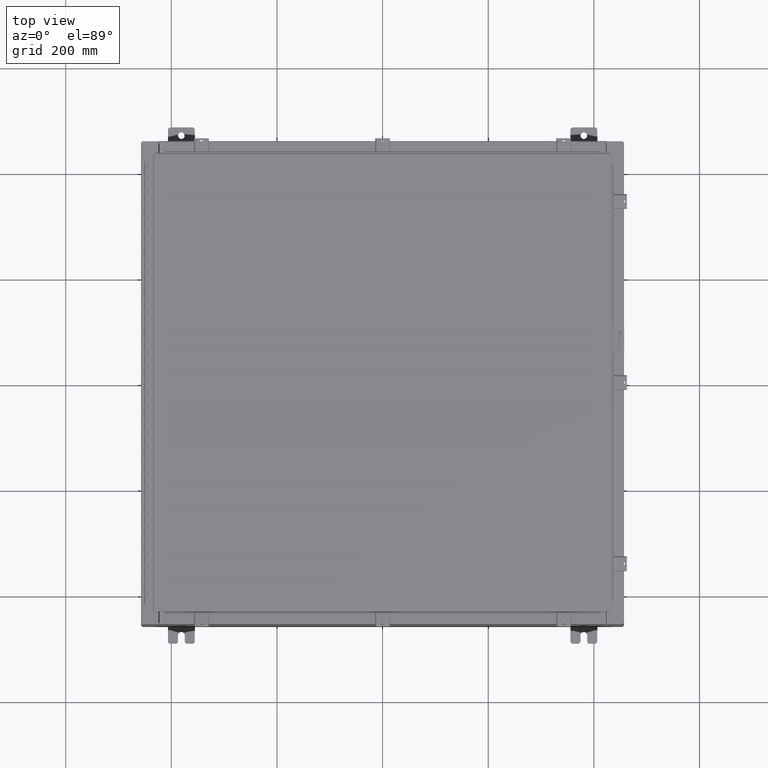
[diagram: clean part render]
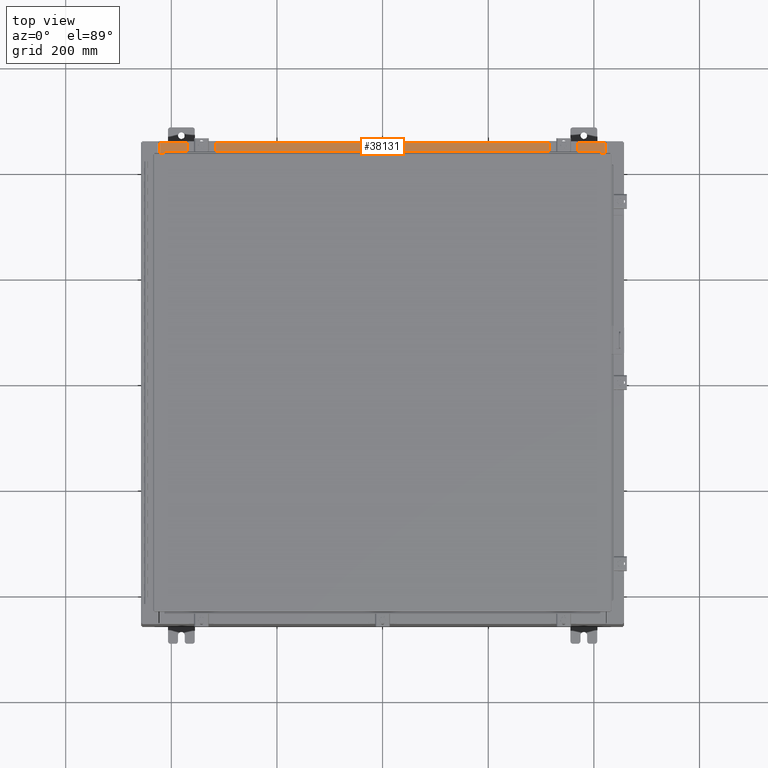
[diagram: same view with one face highlighted and labeled with its STEP entity id]
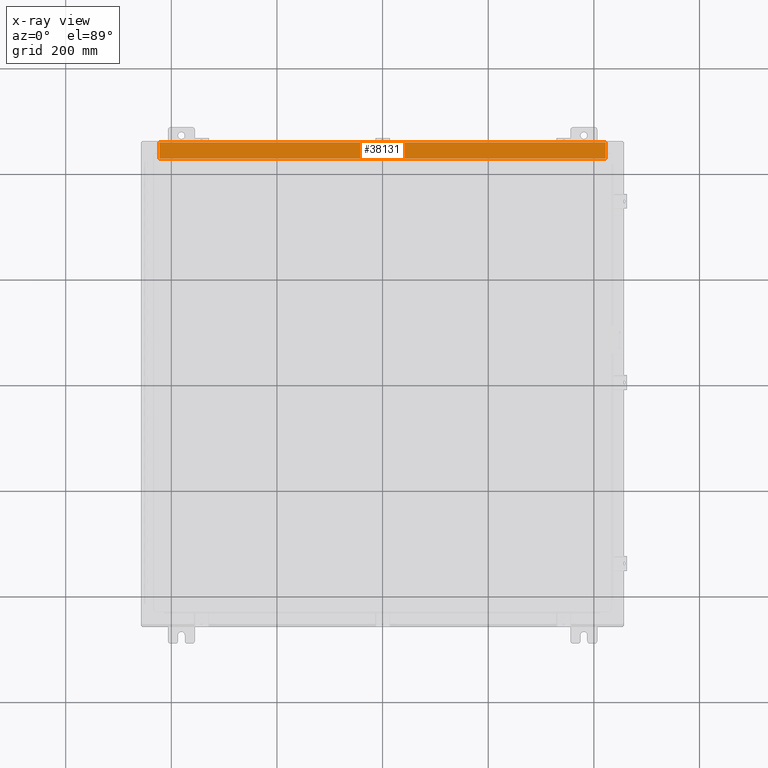
[diagram: x-ray of the same camera — body ghosted, the highlighted face saturated]
A machine part, top view. The second image highlights one B-rep face of the part: STEP entity #38131.
The next image is the same camera in x-ray: the body ghosted, the highlighted face saturated — about 0% of this face is hidden behind the body in this view.
In plain terms, the highlighted planar face has unit normal (0, 0, 1).
Its self-contained STEP definition (entity closure, byte-faithful):
#378 = DIRECTION ( 'NONE',  ( -0.0000000000000000000, 1.000000000000000000, -2.674785894579892700E-015 ) ) ;
#437 = EDGE_CURVE ( 'NONE', #36467, #18773, #7155, .T. ) ;
#1953 = EDGE_CURVE ( 'NONE', #36205, #36467, #21186, .T. ) ;
#3631 = VECTOR ( 'NONE', #378, 39.37007874015748100 ) ;
#4740 = CARTESIAN_POINT ( 'NONE',  ( -16.63719999999999600, -0.08769999999999972300, 5.999999999999999100 ) ) ;
#5788 = CARTESIAN_POINT ( 'NONE',  ( -5.156971724347648400E-018, -0.08769999999999972300, 5.999999999999999100 ) ) ;
#7155 = LINE ( 'NONE', #10080, #42997 ) ;
#8075 = EDGE_LOOP ( 'NONE', ( #8499, #38628, #22397, #26336 ) ) ;
#8376 = LINE ( 'NONE', #5788, #25764 ) ;
#8499 = ORIENTED_EDGE ( 'NONE', *, *, #22002, .F. ) ;
#9284 = DIRECTION ( 'NONE',  ( -1.000000000000000000, 3.284023746380717400E-017, -8.784060394284559800E-032 ) ) ;
#10080 = CARTESIAN_POINT ( 'NONE',  ( 16.63720000000000400, -1.287299999999999400, 6.000000000000001800 ) ) ;
#13283 = DIRECTION ( 'NONE',  ( -1.000000000000000000, 0.0000000000000000000, 0.0000000000000000000 ) ) ;
#13333 = PLANE ( 'NONE',  #16260 ) ;
#13472 = DIRECTION ( 'NONE',  ( 0.0000000000000000000, -1.000000000000000000, 2.674785894579892700E-015 ) ) ;
#14918 = CARTESIAN_POINT ( 'NONE',  ( 16.63720000000000400, -0.08769999999999948700, 5.999999999999999100 ) ) ;
#16260 = AXIS2_PLACEMENT_3D ( 'NONE', #23802, #34262, #13472 ) ;
#18773 = VERTEX_POINT ( 'NONE', #44739 ) ;
#20854 = FACE_OUTER_BOUND ( 'NONE', #8075, .T. ) ;
#21186 = LINE ( 'NONE', #30835, #30388 ) ;
#22002 = EDGE_CURVE ( 'NONE', #18773, #22198, #40598, .T. ) ;
#22198 = VERTEX_POINT ( 'NONE', #4740 ) ;
#22397 = ORIENTED_EDGE ( 'NONE', *, *, #1953, .F. ) ;
#23802 = CARTESIAN_POINT ( 'NONE',  ( -2.276882898771239300E-018, 1.610972251716581800E-014, 5.999999999999999100 ) ) ;
#25764 = VECTOR ( 'NONE', #9284, 39.37007874015748100 ) ;
#26336 = ORIENTED_EDGE ( 'NONE', *, *, #29265, .T. ) ;
#29265 = EDGE_CURVE ( 'NONE', #36205, #22198, #8376, .T. ) ;
#30388 = VECTOR ( 'NONE', #34188, 39.37007874015748100 ) ;
#30835 = CARTESIAN_POINT ( 'NONE',  ( 16.63720000000000400, -1.300299999999999800, 6.000000000000003600 ) ) ;
#34188 = DIRECTION ( 'NONE',  ( -0.0000000000000000000, -1.000000000000000000, 3.566381192773190000E-015 ) ) ;
#34262 = DIRECTION ( 'NONE',  ( 0.0000000000000000000, 2.674785894579892700E-015, 1.000000000000000000 ) ) ;
#36205 = VERTEX_POINT ( 'NONE', #14918 ) ;
#36467 = VERTEX_POINT ( 'NONE', #37046 ) ;
#37046 = CARTESIAN_POINT ( 'NONE',  ( 16.63720000000000400, -1.287299999999999400, 6.000000000000003600 ) ) ;
#38131 = ADVANCED_FACE ( 'NONE', ( #20854 ), #13333, .T. ) ;
#38472 = CARTESIAN_POINT ( 'NONE',  ( -16.63719999999999600, -0.07469999999999973900, 5.999999999999999100 ) ) ;
#38628 = ORIENTED_EDGE ( 'NONE', *, *, #437, .F. ) ;
#40598 = LINE ( 'NONE', #38472, #3631 ) ;
#42997 = VECTOR ( 'NONE', #13283, 39.37007874015748100 ) ;
#44739 = CARTESIAN_POINT ( 'NONE',  ( -16.63719999999999600, -1.287299999999998600, 6.000000000000002700 ) ) ;